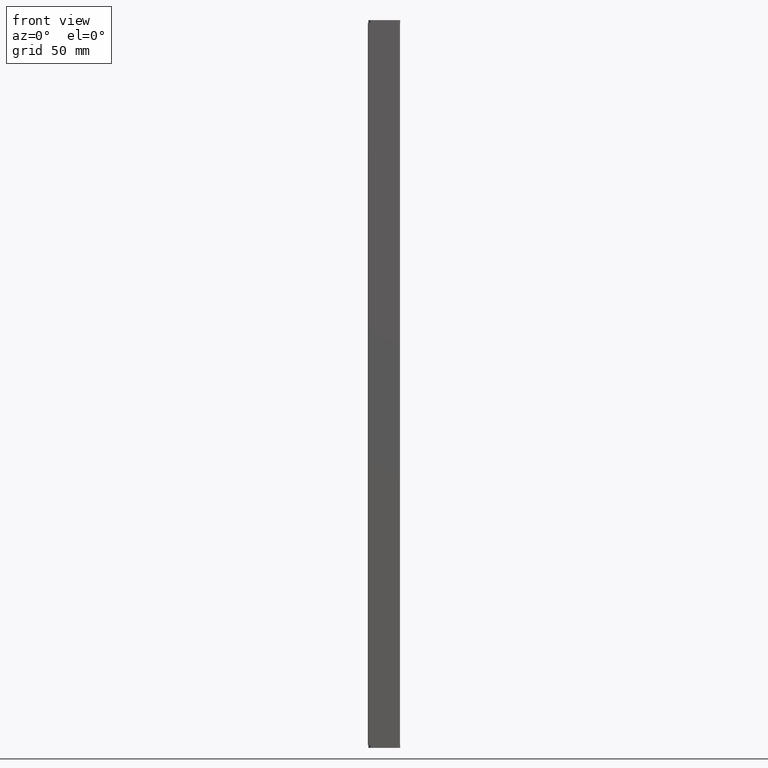
[diagram: clean part render]
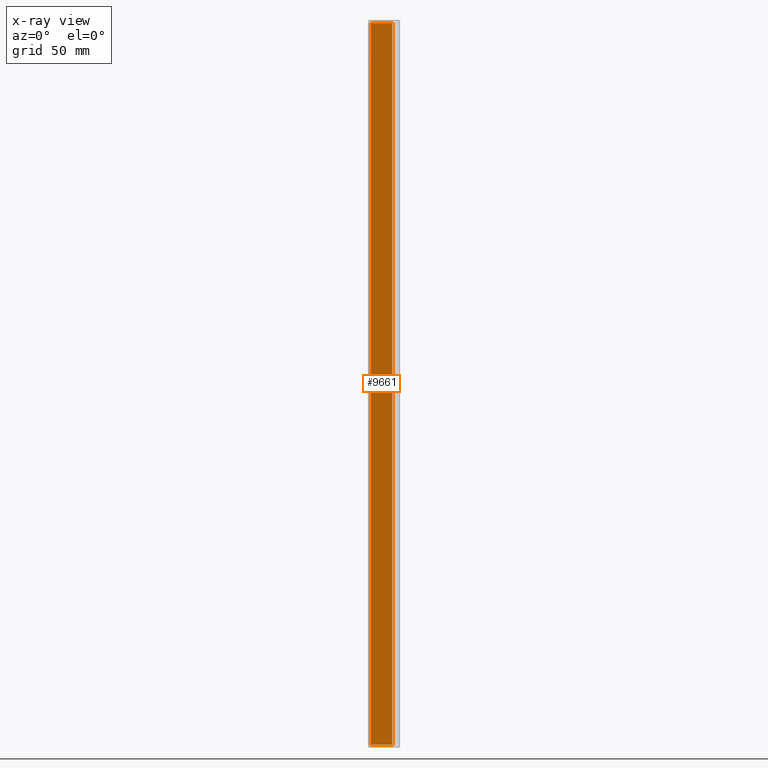
[diagram: x-ray — body ghosted, one internal face saturated and labeled with its STEP entity id]
A machine part, front view, then the same camera in x-ray: the body is ghosted and one INTERNAL B-rep face — a face not visible from any outside direction — is saturated and labeled: STEP entity #9661.
In plain terms, the highlighted planar face has unit normal (0, 1, 0).
Its self-contained STEP definition (entity closure, byte-faithful):
#2391 = ORIENTED_EDGE ( 'NONE', *, *, #5061, .F. ) ;
#2400 = ORIENTED_EDGE ( 'NONE', *, *, #5114, .F. ) ;
#2441 = ORIENTED_EDGE ( 'NONE', *, *, #5095, .F. ) ;
#2481 = ORIENTED_EDGE ( 'NONE', *, *, #5083, .F. ) ;
#3706 = VERTEX_POINT ( 'NONE', #19045 ) ;
#5061 = EDGE_CURVE ( 'NONE', #6118, #6101, #19454, .T. ) ;
#5083 = EDGE_CURVE ( 'NONE', #3706, #6118, #19517, .T. ) ;
#5095 = EDGE_CURVE ( 'NONE', #6116, #3706, #19583, .T. ) ;
#5114 = EDGE_CURVE ( 'NONE', #6101, #6116, #19606, .T. ) ;
#6101 = VERTEX_POINT ( 'NONE', #23604 ) ;
#6116 = VERTEX_POINT ( 'NONE', #23624 ) ;
#6118 = VERTEX_POINT ( 'NONE', #23669 ) ;
#7720 = EDGE_LOOP ( 'NONE', ( #2391, #2481, #2441, #2400 ) ) ;
#9661 = ADVANCED_FACE ( 'NONE', ( #30038 ), #30071, .F. ) ;
#11397 = VECTOR ( 'NONE', #19562, 1000.000000000000000 ) ;
#11417 = VECTOR ( 'NONE', #19610, 1000.000000000000000 ) ;
#19045 = CARTESIAN_POINT ( 'NONE',  ( 735.5466921641409500, 271.6607092558805900, -102.4340184032111000 ) ) ;
#19454 = LINE ( 'NONE', #19484, #23177 ) ;
#19462 = DIRECTION ( 'NONE',  ( 1.000000000000000000, -0.0000000000000000000, -3.579359031391503700E-013 ) ) ;
#19484 = CARTESIAN_POINT ( 'NONE',  ( 734.6100890346734800, 271.6607092558805900, 218.9840184032114800 ) ) ;
#19517 = LINE ( 'NONE', #19577, #23183 ) ;
#19562 = DIRECTION ( 'NONE',  ( -1.000000000000000000, -0.0000000000000000000, -3.579359031391503700E-013 ) ) ;
#19573 = DIRECTION ( 'NONE',  ( 0.0000000000000000000, -0.0000000000000000000, 1.000000000000000000 ) ) ;
#19577 = CARTESIAN_POINT ( 'NONE',  ( 735.5466921641409500, 271.6607092558805900, 221.5499999999999800 ) ) ;
#19583 = LINE ( 'NONE', #19589, #11397 ) ;
#19589 = CARTESIAN_POINT ( 'NONE',  ( 734.6100890346734800, 271.6607092558805900, -102.4340184032114500 ) ) ;
#19606 = LINE ( 'NONE', #19626, #11417 ) ;
#19610 = DIRECTION ( 'NONE',  ( -0.0000000000000000000, -0.0000000000000000000, -1.000000000000000000 ) ) ;
#19626 = CARTESIAN_POINT ( 'NONE',  ( 745.1639254488745800, 271.6607092558805300, 221.5499999999999800 ) ) ;
#23177 = VECTOR ( 'NONE', #19462, 1000.000000000000000 ) ;
#23183 = VECTOR ( 'NONE', #19573, 1000.000000000000000 ) ;
#23604 = CARTESIAN_POINT ( 'NONE',  ( 745.1639254488745800, 271.6607092558805900, 218.9840184032075900 ) ) ;
#23624 = CARTESIAN_POINT ( 'NONE',  ( 745.1639254488745800, 271.6607092558805900, -102.4340184032076700 ) ) ;
#23669 = CARTESIAN_POINT ( 'NONE',  ( 735.5466921641409500, 271.6607092558805900, 218.9840184032105400 ) ) ;
#26521 = AXIS2_PLACEMENT_3D ( 'NONE', #30090, #30069, #30087 ) ;
#30038 = FACE_OUTER_BOUND ( 'NONE', #7720, .T. ) ;
#30069 = DIRECTION ( 'NONE',  ( 0.0000000000000000000, 1.000000000000000000, 0.0000000000000000000 ) ) ;
#30071 = PLANE ( 'NONE',  #26521 ) ;
#30087 = DIRECTION ( 'NONE',  ( 0.0000000000000000000, -0.0000000000000000000, 1.000000000000000000 ) ) ;
#30090 = CARTESIAN_POINT ( 'NONE',  ( 741.4460531650579500, 271.6607092558805900, 221.5499999999999800 ) ) ;